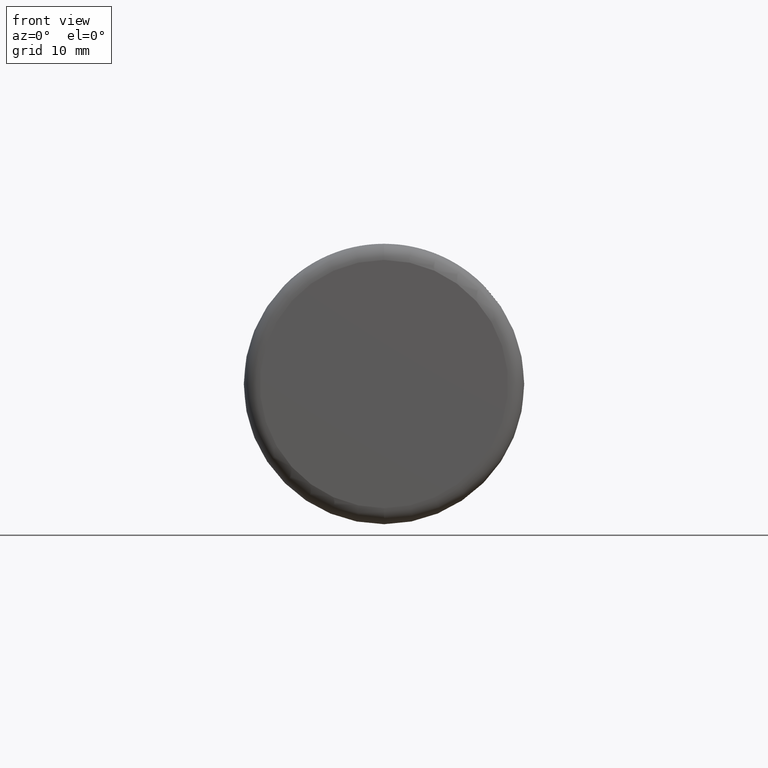
[diagram: clean part render]
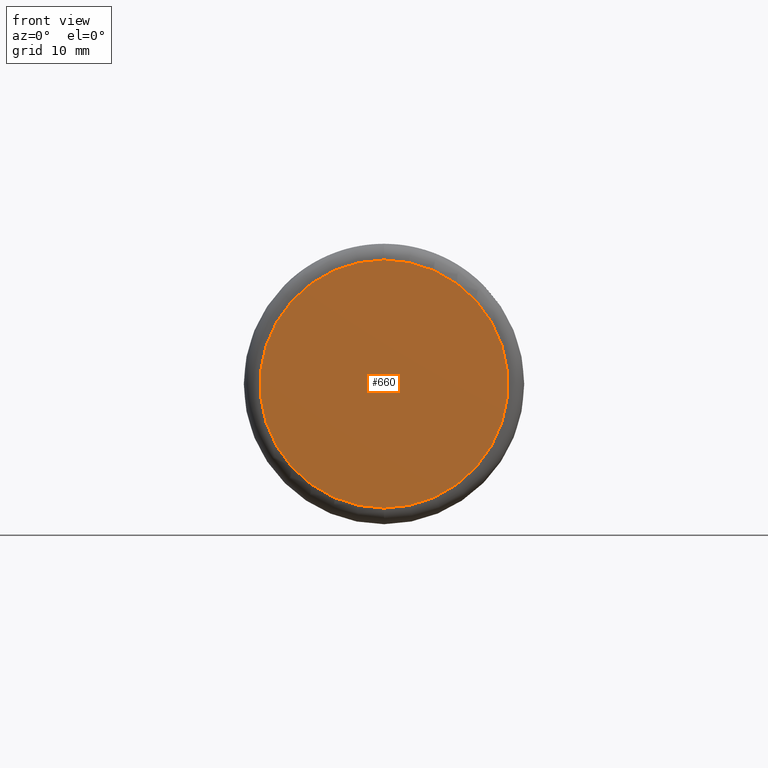
[diagram: same view with one face highlighted and labeled with its STEP entity id]
A machine part, front view. The second image highlights one B-rep face of the part: STEP entity #660.
In plain terms, the highlighted planar face has unit normal (0, 1, 0).
Its self-contained STEP definition (entity closure, byte-faithful):
#154 = DIRECTION ( 'NONE',  ( 0.0000000000000000000, -0.0000000000000000000, 1.000000000000000000 ) ) ;
#318 = EDGE_CURVE ( 'NONE', #3627, #4669, #2642, .T. ) ;
#660 = ADVANCED_FACE ( 'NONE', ( #780 ), #4584, .F. ) ;
#780 = FACE_OUTER_BOUND ( 'NONE', #2695, .T. ) ;
#1402 = CIRCLE ( 'NONE', #2771, 11.50240000000000200 ) ;
#1824 = CARTESIAN_POINT ( 'NONE',  ( 0.0000000000000000000, 0.0000000000000000000, 0.0000000000000000000 ) ) ;
#2167 = CARTESIAN_POINT ( 'NONE',  ( 0.0000000000000000000, 0.0000000000000000000, 0.0000000000000000000 ) ) ;
#2379 = CARTESIAN_POINT ( 'NONE',  ( 0.0000000000000000000, 0.0000000000000000000, 0.0000000000000000000 ) ) ;
#2514 = EDGE_CURVE ( 'NONE', #4669, #3627, #1402, .T. ) ;
#2642 = CIRCLE ( 'NONE', #3063, 11.50240000000000200 ) ;
#2695 = EDGE_LOOP ( 'NONE', ( #3800, #4439 ) ) ;
#2771 = AXIS2_PLACEMENT_3D ( 'NONE', #1824, #3298, #2990 ) ;
#2990 = DIRECTION ( 'NONE',  ( 0.0000000000000000000, 0.0000000000000000000, 1.000000000000000000 ) ) ;
#3037 = AXIS2_PLACEMENT_3D ( 'NONE', #2379, #3842, #154 ) ;
#3063 = AXIS2_PLACEMENT_3D ( 'NONE', #2167, #4424, #3317 ) ;
#3298 = DIRECTION ( 'NONE',  ( -0.0000000000000000000, -1.000000000000000000, -0.0000000000000000000 ) ) ;
#3317 = DIRECTION ( 'NONE',  ( 0.0000000000000000000, 0.0000000000000000000, 1.000000000000000000 ) ) ;
#3627 = VERTEX_POINT ( 'NONE', #4084 ) ;
#3800 = ORIENTED_EDGE ( 'NONE', *, *, #2514, .T. ) ;
#3812 = CARTESIAN_POINT ( 'NONE',  ( 0.0000000000000000000, 0.0000000000000000000, 11.50240000000000200 ) ) ;
#3842 = DIRECTION ( 'NONE',  ( 0.0000000000000000000, 1.000000000000000000, 0.0000000000000000000 ) ) ;
#4084 = CARTESIAN_POINT ( 'NONE',  ( 1.500339286571405600E-015, 0.0000000000000000000, -11.50240000000000200 ) ) ;
#4424 = DIRECTION ( 'NONE',  ( -0.0000000000000000000, -1.000000000000000000, -0.0000000000000000000 ) ) ;
#4439 = ORIENTED_EDGE ( 'NONE', *, *, #318, .T. ) ;
#4584 = PLANE ( 'NONE',  #3037 ) ;
#4669 = VERTEX_POINT ( 'NONE', #3812 ) ;